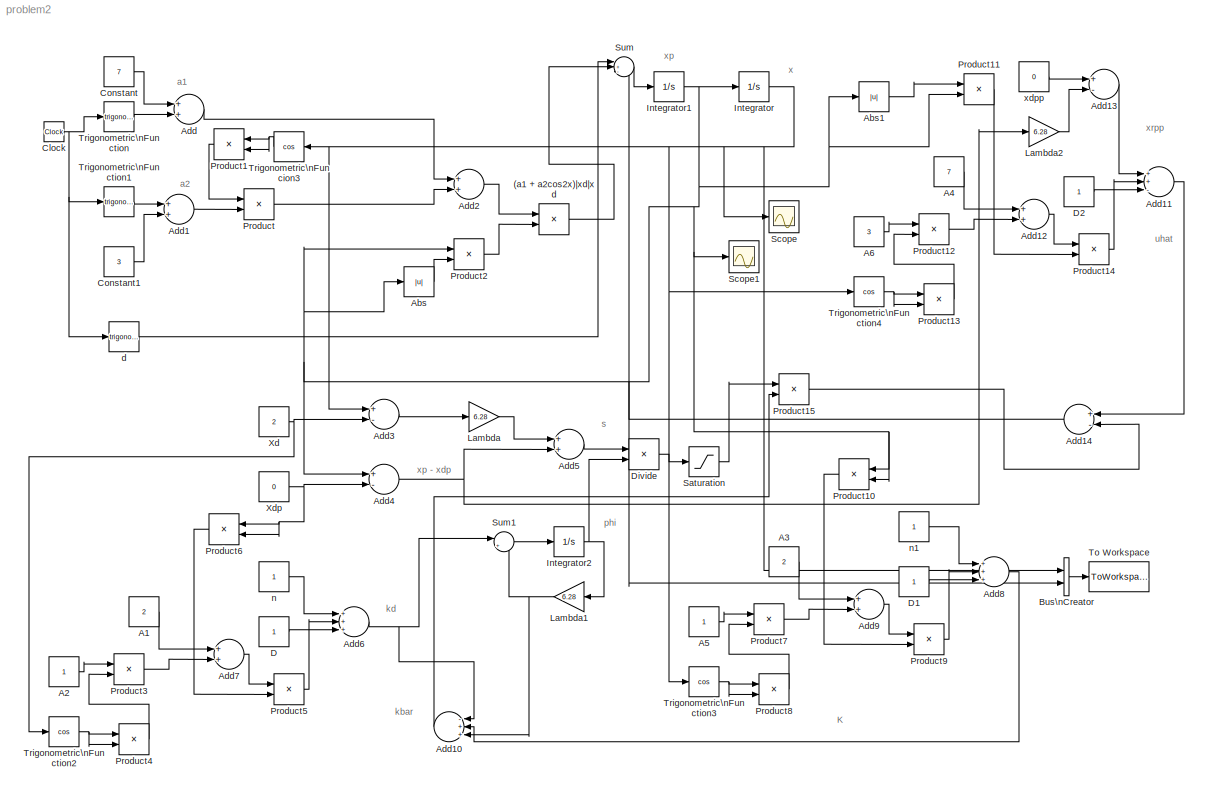
MODEL problem2
KIND model
BLOCK [Product] (a1 + a2cos2x)|xd|xd
  InputSameDT = off
  OutDataType = fixdt(1, 16)
  OutDataTypeMode = Inherit via internal rule
  OutDataTypeStr = Inherit: Inherit via internal rule
  OutScaling = 2^0
  Ports = [2, 1]
  SID = 18
  SaturateOnIntegerOverflow = off
BLOCK [Constant] A1
  OutDataType = fixdt(1, 16)
  OutScaling = 2^0
  SID = 32
  Value = 2
BLOCK [Constant] A2
  OutDataType = fixdt(1, 16)
  OutScaling = 2^0
  SID = 33
BLOCK [Constant] A3
  OutDataType = fixdt(1, 16)
  OutScaling = 2^0
  SID = 40
  Value = 2
BLOCK [Constant] A4
  OutDataType = fixdt(1, 16)
  OutScaling = 2^0
  SID = 86
  Value = 7
BLOCK [Constant] A5
  OutDataType = fixdt(1, 16)
  OutScaling = 2^0
  SID = 41
BLOCK [Constant] A6
  OutDataType = fixdt(1, 16)
  OutScaling = 2^0
  SID = 87
  Value = 3
BLOCK [Abs] Abs
  OutDataType = fixdt(1, 16)
  OutScaling = 2^0
  SID = 16
  SaturateOnIntegerOverflow = off
BLOCK [Abs] Abs1
  OutDataType = fixdt(1, 16)
  OutScaling = 2^0
  SID = 97
  SaturateOnIntegerOverflow = off
BLOCK [Sum] Add
  InputSameDT = off
  OutDataType = fixdt(1, 16)
  OutDataTypeMode = Inherit via internal rule
  OutDataTypeStr = Inherit: Inherit via internal rule
  OutScaling = 2^-10
  Ports = [2, 1]
  SID = 5
  SaturateOnIntegerOverflow = off
BLOCK [Sum] Add1
  InputSameDT = off
  OutDataType = fixdt(1, 16)
  OutDataTypeMode = Inherit via internal rule
  OutDataTypeStr = Inherit: Inherit via internal rule
  OutScaling = 2^-10
  Ports = [2, 1]
  SID = 6
  SaturateOnIntegerOverflow = off
BLOCK [Sum] Add10
  InputSameDT = off
  Inputs = -++
  OutDataType = fixdt(1, 16)
  OutDataTypeMode = Inherit via internal rule
  OutDataTypeStr = Inherit: Inherit via internal rule
  OutScaling = 2^-10
  Ports = [3, 1]
  SID = 51
  SaturateOnIntegerOverflow = off
BLOCK [Sum] Add11
  InputSameDT = off
  Inputs = ++-
  OutDataType = fixdt(1, 16)
  OutDataTypeMode = Inherit via internal rule
  OutDataTypeStr = Inherit: Inherit via internal rule
  OutScaling = 2^-10
  Ports = [3, 1]
  SID = 88
  SaturateOnIntegerOverflow = off
BLOCK [Sum] Add12
  InputSameDT = off
  OutDataType = fixdt(1, 16)
  OutDataTypeMode = Inherit via internal rule
  OutDataTypeStr = Inherit: Inherit via internal rule
  OutScaling = 2^-10
  Ports = [2, 1]
  SID = 89
  SaturateOnIntegerOverflow = off
BLOCK [Sum] Add13
  InputSameDT = off
  Inputs = +-
  OutDataType = fixdt(1, 16)
  OutDataTypeMode = Inherit via internal rule
  OutDataTypeStr = Inherit: Inherit via internal rule
  OutScaling = 2^-10
  Ports = [2, 1]
  SID = 99
  SaturateOnIntegerOverflow = off
BLOCK [Sum] Add14
  InputSameDT = off
  Inputs = +-
  OutDataType = fixdt(1, 16)
  OutDataTypeMode = Inherit via internal rule
  OutDataTypeStr = Inherit: Inherit via internal rule
  OutScaling = 2^-10
  Ports = [2, 1]
  SID = 101
  SaturateOnIntegerOverflow = off
BLOCK [Sum] Add2
  InputSameDT = off
  OutDataType = fixdt(1, 16)
  OutDataTypeMode = Inherit via internal rule
  OutDataTypeStr = Inherit: Inherit via internal rule
  OutScaling = 2^-10
  Ports = [2, 1]
  SID = 15
  SaturateOnIntegerOverflow = off
BLOCK [Sum] Add3
  InputSameDT = off
  Inputs = +-
  OutDataType = fixdt(1, 16)
  OutDataTypeMode = Inherit via internal rule
  OutDataTypeStr = Inherit: Inherit via internal rule
  OutScaling = 2^-10
  Ports = [2, 1]
  SID = 21
  SaturateOnIntegerOverflow = off
BLOCK [Sum] Add4
  InputSameDT = off
  Inputs = +-
  OutDataType = fixdt(1, 16)
  OutDataTypeMode = Inherit via internal rule
  OutDataTypeStr = Inherit: Inherit via internal rule
  OutScaling = 2^-10
  Ports = [2, 1]
  SID = 23
  SaturateOnIntegerOverflow = off
BLOCK [Sum] Add5
  InputSameDT = off
  OutDataType = fixdt(1, 16)
  OutDataTypeMode = Inherit via internal rule
  OutDataTypeStr = Inherit: Inherit via internal rule
  OutScaling = 2^-10
  Ports = [2, 1]
  SID = 24
  SaturateOnIntegerOverflow = off
BLOCK [Sum] Add6
  InputSameDT = off
  Inputs = +++
  OutDataType = fixdt(1, 16)
  OutDataTypeMode = Inherit via internal rule
  OutDataTypeStr = Inherit: Inherit via internal rule
  OutScaling = 2^-10
  Ports = [3, 1]
  SID = 28
  SaturateOnIntegerOverflow = off
BLOCK [Sum] Add7
  InputSameDT = off
  OutDataType = fixdt(1, 16)
  OutDataTypeMode = Inherit via internal rule
  OutDataTypeStr = Inherit: Inherit via internal rule
  OutScaling = 2^-10
  Ports = [2, 1]
  SID = 31
  SaturateOnIntegerOverflow = off
BLOCK [Sum] Add8
  InputSameDT = off
  Inputs = +++
  OutDataType = fixdt(1, 16)
  OutDataTypeMode = Inherit via internal rule
  OutDataTypeStr = Inherit: Inherit via internal rule
  OutScaling = 2^-10
  Ports = [3, 1]
  SID = 42
  SaturateOnIntegerOverflow = off
BLOCK [Sum] Add9
  InputSameDT = off
  OutDataType = fixdt(1, 16)
  OutDataTypeMode = Inherit via internal rule
  OutDataTypeStr = Inherit: Inherit via internal rule
  OutScaling = 2^-10
  Ports = [2, 1]
  SID = 43
  SaturateOnIntegerOverflow = off
BLOCK [BusCreator] Bus\nCreator
  DisplayOption = bar
  Inputs = 2
  Ports = [2, 1]
  SID = 108
BLOCK [Clock] Clock
  Decimation = 10
  SID = 1
BLOCK [Constant] Constant
  OutDataType = fixdt(1, 16)
  OutScaling = 2^0
  SID = 7
  Value = 7
BLOCK [Constant] Constant1
  OutDataType = fixdt(1, 16)
  OutScaling = 2^0
  SID = 8
  Value = 3
BLOCK [Constant] D
  OutDataType = fixdt(1, 16)
  OutScaling = 2^0
  SID = 39
BLOCK [Constant] D1
  OutDataType = fixdt(1, 16)
  OutScaling = 2^0
  SID = 44
BLOCK [Constant] D2
  OutDataType = fixdt(1, 16)
  OutScaling = 2^0
  SID = 90
BLOCK [Product] Divide
  InputSameDT = off
  Inputs = */
  OutDataType = fixdt(1, 16)
  OutDataTypeMode = Inherit via internal rule
  OutDataTypeStr = Inherit: Inherit via internal rule
  OutScaling = 2^-10
  Ports = [2, 1]
  RndMeth = Floor
  SID = 102
  SaturateOnIntegerOverflow = off
BLOCK [Integrator] Integrator
  InitialCondition = 3
  Ports = [1, 1]
  SID = 9
BLOCK [Integrator] Integrator1
  Ports = [1, 1]
  SID = 63
BLOCK [Integrator] Integrator2
  Ports = [1, 1]
  SID = 26
BLOCK [Gain] Lambda
  Gain = 6.28
  OutDataType = fixdt(1, 16)
  OutDataTypeMode = Inherit via internal rule
  OutDataTypeStr = Inherit: Inherit via internal rule
  OutScaling = 2^0
  ParamDataTypeStr = Inherit: Inherit via internal rule
  ParameterDataType = fixdt(1, 16)
  ParameterDataTypeMode = Inherit via internal rule
  ParameterScaling = 2^0
  SID = 22
  SaturateOnIntegerOverflow = off
BLOCK [Gain] Lambda1
  Gain = 6.28
  OutDataType = fixdt(1, 16)
  OutDataTypeMode = Inherit via internal rule
  OutDataTypeStr = Inherit: Inherit via internal rule
  OutScaling = 2^0
  ParamDataTypeStr = Inherit: Inherit via internal rule
  ParameterDataType = fixdt(1, 16)
  ParameterDataTypeMode = Inherit via internal rule
  ParameterScaling = 2^0
  SID = 27
  SaturateOnIntegerOverflow = off
BLOCK [Gain] Lambda2
  Gain = 6.28
  OutDataType = fixdt(1, 16)
  OutDataTypeMode = Inherit via internal rule
  OutDataTypeStr = Inherit: Inherit via internal rule
  OutScaling = 2^0
  ParamDataTypeStr = Inherit: Inherit via internal rule
  ParameterDataType = fixdt(1, 16)
  ParameterDataTypeMode = Inherit via internal rule
  ParameterScaling = 2^0
  SID = 100
  SaturateOnIntegerOverflow = off
BLOCK [Product] Product
  InputSameDT = off
  OutDataType = fixdt(1, 16)
  OutDataTypeMode = Inherit via internal rule
  OutDataTypeStr = Inherit: Inherit via internal rule
  OutScaling = 2^0
  Ports = [2, 1]
  SID = 12
  SaturateOnIntegerOverflow = off
BLOCK [Product] Product1
  InputSameDT = off
  OutDataType = fixdt(1, 16)
  OutDataTypeMode = Inherit via internal rule
  OutDataTypeStr = Inherit: Inherit via internal rule
  OutScaling = 2^0
  Ports = [2, 1]
  SID = 14
  SaturateOnIntegerOverflow = off
BLOCK [Product] Product10
  InputSameDT = off
  OutDataType = fixdt(1, 16)
  OutDataTypeMode = Inherit via internal rule
  OutDataTypeStr = Inherit: Inherit via internal rule
  OutScaling = 2^0
  Ports = [2, 1]
  SID = 48
  SaturateOnIntegerOverflow = off
BLOCK [Product] Product11
  InputSameDT = off
  OutDataType = fixdt(1, 16)
  OutDataTypeMode = Inherit via internal rule
  OutDataTypeStr = Inherit: Inherit via internal rule
  OutScaling = 2^0
  Ports = [2, 1]
  SID = 91
  SaturateOnIntegerOverflow = off
BLOCK [Product] Product12
  InputSameDT = off
  OutDataType = fixdt(1, 16)
  OutDataTypeMode = Inherit via internal rule
  OutDataTypeStr = Inherit: Inherit via internal rule
  OutScaling = 2^0
  Ports = [2, 1]
  SID = 92
  SaturateOnIntegerOverflow = off
BLOCK [Product] Product13
  InputSameDT = off
  OutDataType = fixdt(1, 16)
  OutDataTypeMode = Inherit via internal rule
  OutDataTypeStr = Inherit: Inherit via internal rule
  OutScaling = 2^0
  Ports = [2, 1]
  SID = 93
  SaturateOnIntegerOverflow = off
BLOCK [Product] Product14
  InputSameDT = off
  OutDataType = fixdt(1, 16)
  OutDataTypeMode = Inherit via internal rule
  OutDataTypeStr = Inherit: Inherit via internal rule
  OutScaling = 2^0
  Ports = [2, 1]
  SID = 94
  SaturateOnIntegerOverflow = off
BLOCK [Product] Product15
  InputSameDT = off
  OutDataType = fixdt(1, 16)
  OutDataTypeMode = Inherit via internal rule
  OutDataTypeStr = Inherit: Inherit via internal rule
  OutScaling = 2^0
  Ports = [2, 1]
  SID = 104
  SaturateOnIntegerOverflow = off
BLOCK [Product] Product2
  InputSameDT = off
  OutDataType = fixdt(1, 16)
  OutDataTypeMode = Inherit via internal rule
  OutDataTypeStr = Inherit: Inherit via internal rule
  OutScaling = 2^0
  Ports = [2, 1]
  SID = 17
  SaturateOnIntegerOverflow = off
BLOCK [Product] Product3
  InputSameDT = off
  OutDataType = fixdt(1, 16)
  OutDataTypeMode = Inherit via internal rule
  OutDataTypeStr = Inherit: Inherit via internal rule
  OutScaling = 2^0
  Ports = [2, 1]
  SID = 34
  SaturateOnIntegerOverflow = off
BLOCK [Product] Product4
  InputSameDT = off
  OutDataType = fixdt(1, 16)
  OutDataTypeMode = Inherit via internal rule
  OutDataTypeStr = Inherit: Inherit via internal rule
  OutScaling = 2^0
  Ports = [2, 1]
  SID = 36
  SaturateOnIntegerOverflow = off
BLOCK [Product] Product5
  InputSameDT = off
  OutDataType = fixdt(1, 16)
  OutDataTypeMode = Inherit via internal rule
  OutDataTypeStr = Inherit: Inherit via internal rule
  OutScaling = 2^0
  Ports = [2, 1]
  SID = 37
  SaturateOnIntegerOverflow = off
BLOCK [Product] Product6
  InputSameDT = off
  OutDataType = fixdt(1, 16)
  OutDataTypeMode = Inherit via internal rule
  OutDataTypeStr = Inherit: Inherit via internal rule
  OutScaling = 2^0
  Ports = [2, 1]
  SID = 38
  SaturateOnIntegerOverflow = off
BLOCK [Product] Product7
  InputSameDT = off
  OutDataType = fixdt(1, 16)
  OutDataTypeMode = Inherit via internal rule
  OutDataTypeStr = Inherit: Inherit via internal rule
  OutScaling = 2^0
  Ports = [2, 1]
  SID = 45
  SaturateOnIntegerOverflow = off
BLOCK [Product] Product8
  InputSameDT = off
  OutDataType = fixdt(1, 16)
  OutDataTypeMode = Inherit via internal rule
  OutDataTypeStr = Inherit: Inherit via internal rule
  OutScaling = 2^0
  Ports = [2, 1]
  SID = 46
  SaturateOnIntegerOverflow = off
BLOCK [Product] Product9
  InputSameDT = off
  OutDataType = fixdt(1, 16)
  OutDataTypeMode = Inherit via internal rule
  OutDataTypeStr = Inherit: Inherit via internal rule
  OutScaling = 2^0
  Ports = [2, 1]
  SID = 47
  SaturateOnIntegerOverflow = off
BLOCK [Saturate] Saturation
  LowerLimit = -1
  OutDataType = fixdt(1, 16)
  OutScaling = 2^0
  Ports = [1, 1]
  SID = 103
  UpperLimit = 1
BLOCK [Scope] Scope
  DataFormat = StructureWithTime
  Floating = off
  NumInputPorts = 1
  Ports = [1]
  SID = 105
  SampleTime = 0
  TimeRange = 10
  YMin = 2.5
BLOCK [Scope] Scope1
  DataFormat = StructureWithTime
  Floating = off
  NumInputPorts = 1
  Ports = [1]
  SID = 106
  SampleTime = 0
  SaveName = ScopeData1
  TimeRange = 10
  YMin = 2.5
BLOCK [Sum] Sum
  IconShape = round
  InputSameDT = off
  Inputs = |+-+
  OutDataType = fixdt(1, 16)
  OutDataTypeMode = Inherit via internal rule
  OutDataTypeStr = Inherit: Inherit via internal rule
  OutScaling = 2^0
  Ports = [3, 1]
  SID = 2
  SaturateOnIntegerOverflow = off
BLOCK [Sum] Sum1
  IconShape = round
  InputSameDT = off
  Inputs = |+-
  OutDataType = fixdt(1, 16)
  OutDataTypeMode = Inherit via internal rule
  OutDataTypeStr = Inherit: Inherit via internal rule
  OutScaling = 2^0
  Ports = [2, 1]
  SID = 25
  SaturateOnIntegerOverflow = off
BLOCK [ToWorkspace] To Workspace
  MaxDataPoints = inf
  Ports = [1]
  SID = 107
  SampleTime = -1
  SaveFormat = Array
  VariableName = simout
BLOCK [Trigonometry] Trigonometric\nFuncion3
  Operator = cos
  Ports = [1, 1]
  SID = 13
BLOCK [Trigonometry] Trigonometric\nFunction
  Ports = [1, 1]
  SID = 3
BLOCK [Trigonometry] Trigonometric\nFunction1
  Ports = [1, 1]
  SID = 4
BLOCK [Trigonometry] Trigonometric\nFunction2
  Operator = cos
  Ports = [1, 1]
  SID = 35
BLOCK [Trigonometry] Trigonometric\nFunction3
  Operator = cos
  Ports = [1, 1]
  SID = 49
BLOCK [Trigonometry] Trigonometric\nFunction4
  Operator = cos
  Ports = [1, 1]
  SID = 95
BLOCK [Constant] Xd
  OutDataType = fixdt(1, 16)
  OutScaling = 2^0
  SID = 19
  Value = 2
BLOCK [Constant] Xdp
  OutDataType = fixdt(1, 16)
  OutScaling = 2^0
  SID = 20
  Value = 0
BLOCK [Trigonometry] d
  Ports = [1, 1]
  SID = 11
BLOCK [Constant] n
  OutDataType = fixdt(1, 16)
  OutScaling = 2^0
  SID = 29
BLOCK [Constant] n1
  OutDataType = fixdt(1, 16)
  OutScaling = 2^0
  SID = 50
BLOCK [Constant] xdpp
  OutDataType = fixdt(1, 16)
  OutScaling = 2^0
  SID = 98
  Value = 0
ANNOTATION (root): K
ANNOTATION (root): a1
ANNOTATION (root): a2
ANNOTATION (root): kbar
ANNOTATION (root): kd
ANNOTATION (root): phi
ANNOTATION (root): s
ANNOTATION (root): uhat
ANNOTATION (root): x
ANNOTATION (root): xp
ANNOTATION (root): xp - xdp
ANNOTATION (root): xrpp
LINE (a1 + a2cos2x)|xd|xd:1 -> Sum:2
LINE A1:1 -> Add7:1
LINE A2:1 -> Product3:1
LINE A3:1 -> Add9:1
LINE A4:1 -> Add12:1
LINE A5:1 -> Product7:1
LINE A6:1 -> Product12:1
LINE Abs1:1 -> Product11:1
LINE Abs:1 -> Product2:2
LINE Add10:1 -> Product15:2
LINE Add11:1 -> Add14:1
LINE Add12:1 -> Product14:1
LINE Add13:1 -> Add11:1
LINE Add14:1 -> Sum:3
LINE Add1:1 -> Product:2
LINE Add2:1 -> (a1 + a2cos2x)|xd|xd:1
LINE Add3:1 -> Lambda:1
NET Add4:1 -> Add5:2, Lambda2:1
LINE Add5:1 -> Divide:1
NET Add6:1 -> Add10:1, Sum1:1
LINE Add7:1 -> Product5:1
LINE Add8:1 -> Add10:2
LINE Add9:1 -> Product9:1
LINE Add:1 -> Add2:1
LINE Bus\nCreator:1 -> To Workspace:1
NET Clock:1 -> Trigonometric\nFunction1:1, Trigonometric\nFunction:1, d:1
LINE Constant1:1 -> Add1:2
LINE Constant:1 -> Add:1
LINE D1:1 -> Add8:3
LINE D2:1 -> Add11:3
LINE D:1 -> Add6:3
LINE Divide:1 -> Saturation:1
NET Integrator1:1 -> Abs1:1, Abs:1, Add4:1, Bus\nCreator:2, Integrator:1, Product10:1, Product10:2, Product11:2, Product2:1, Scope1:1
NET Integrator2:1 -> Divide:2, Lambda1:1
NET Integrator:1 -> Add3:1, Bus\nCreator:1, Scope:1, Trigonometric\nFuncion3:1, Trigonometric\nFunction3:1, Trigonometric\nFunction4:1
NET Lambda1:1 -> Add10:3, Sum1:2
LINE Lambda2:1 -> Add13:2
LINE Lambda:1 -> Add5:1
LINE Product10:1 -> Product9:2
LINE Product11:1 -> Product14:2
LINE Product12:1 -> Add12:2
LINE Product13:1 -> Product12:2
LINE Product14:1 -> Add11:2
LINE Product15:1 -> Add14:2
LINE Product1:1 -> Product:1
LINE Product2:1 -> (a1 + a2cos2x)|xd|xd:2
LINE Product3:1 -> Add7:2
LINE Product4:1 -> Product3:2
LINE Product5:1 -> Add6:2
LINE Product6:1 -> Product5:2
LINE Product7:1 -> Add9:2
LINE Product8:1 -> Product7:2
LINE Product9:1 -> Add8:2
LINE Product:1 -> Add2:2
LINE Saturation:1 -> Product15:1
LINE Sum1:1 -> Integrator2:1
LINE Sum:1 -> Integrator1:1
NET Trigonometric\nFuncion3:1 -> Product1:1, Product1:2
LINE Trigonometric\nFunction1:1 -> Add1:1
NET Trigonometric\nFunction2:1 -> Product4:1, Product4:2
NET Trigonometric\nFunction3:1 -> Product8:1, Product8:2
NET Trigonometric\nFunction4:1 -> Product13:1, Product13:2
LINE Trigonometric\nFunction:1 -> Add:2
NET Xd:1 -> Add3:2, Trigonometric\nFunction2:1
NET Xdp:1 -> Add4:2, Product6:1, Product6:2
LINE d:1 -> Sum:1
LINE n1:1 -> Add8:1
LINE n:1 -> Add6:1
LINE xdpp:1 -> Add13:1
note: NET lines group one-source signal fan-out (src -> all destinations, sorted); 1:1 wires keep LINE
